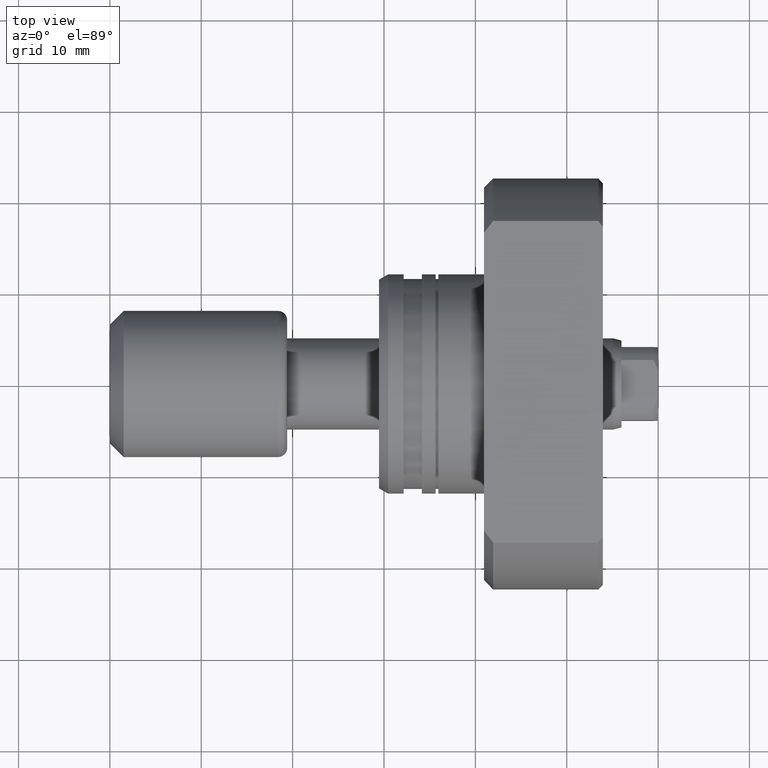
[diagram: clean part render]
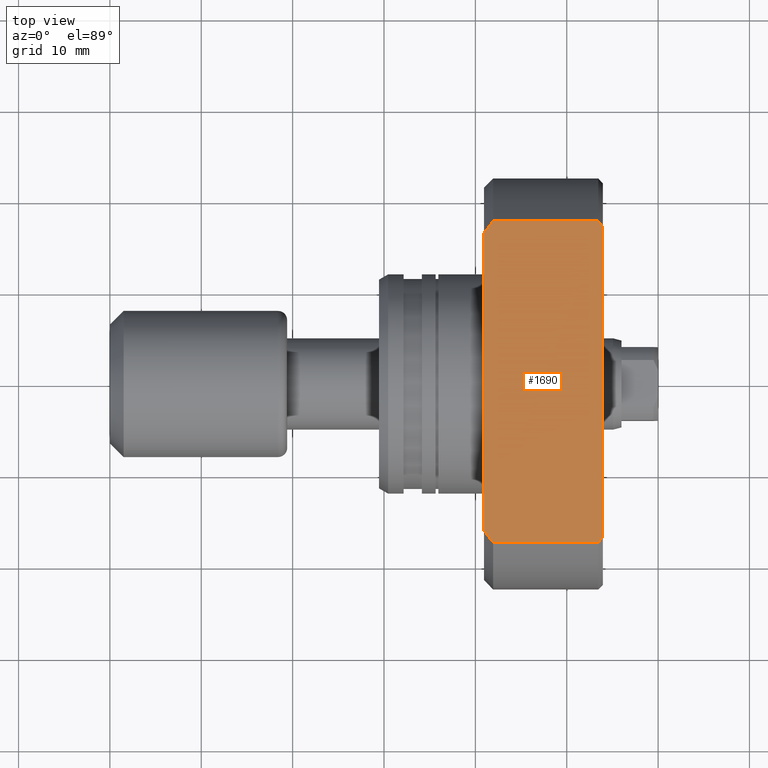
[diagram: same view with one face highlighted and labeled with its STEP entity id]
A machine part, top view. The second image highlights one B-rep face of the part: STEP entity #1690.
In plain terms, the highlighted planar face has unit normal (0, 0, 1).
Its self-contained STEP definition (entity closure, byte-faithful):
#130 = VERTEX_POINT ( 'NONE', #1606 ) ;
#141 = ORIENTED_EDGE ( 'NONE', *, *, #972, .T. ) ;
#162 = VERTEX_POINT ( 'NONE', #245 ) ;
#220 = B_SPLINE_CURVE_WITH_KNOTS ( 'NONE', 3,
 ( #3134, #1663, #1417, #899 ),
 .UNSPECIFIED., .F., .F.,
 ( 4, 4 ),
 ( 0.06706314534022636553, 0.06787700449519981638 ),
 .UNSPECIFIED. ) ;
#245 = CARTESIAN_POINT ( 'NONE',  ( 24.50000000000000000, 16.97056274847713553, 14.00000000000000355 ) ) ;
#257 = EDGE_CURVE ( 'NONE', #1343, #130, #2951, .T. ) ;
#596 = EDGE_CURVE ( 'NONE', #2818, #162, #963, .T. ) ;
#608 = DIRECTION ( 'NONE',  ( 1.000000000000000000, 0.000000000000000000, -0.000000000000000000 ) ) ;
#639 = CARTESIAN_POINT ( 'NONE',  ( -1.422473250300981817E-13, 17.61391495380915018, 14.00000000000000355 ) ) ;
#681 = B_SPLINE_CURVE_WITH_KNOTS ( 'NONE', 3,
 ( #2090, #1584, #1866, #3076 ),
 .UNSPECIFIED., .F., .F.,
 ( 4, 4 ),
 ( 0.06624998678667230745, 0.06788534956766804906 ),
 .UNSPECIFIED. ) ;
#710 = CARTESIAN_POINT ( 'NONE',  ( -1.162264728904460753E-12, -17.61391495380774685, 14.00000000000001066 ) ) ;
#756 = CARTESIAN_POINT ( 'NONE',  ( 24.00000000000007461, -17.61391495380843963, 14.00000000000001066 ) ) ;
#789 = CARTESIAN_POINT ( 'NONE',  ( 11.82989979264795011, 16.75185491336265997, 14.00000000000000355 ) ) ;
#899 = CARTESIAN_POINT ( 'NONE',  ( 24.00000000000007461, 17.61391495380845029, 13.99999999999999645 ) ) ;
#911 = DIRECTION ( 'NONE',  ( 4.998558363877804092E-19, -1.000000000000000000, 0.000000000000000000 ) ) ;
#952 = ORIENTED_EDGE ( 'NONE', *, *, #2992, .T. ) ;
#963 = LINE ( 'NONE', #1910, #3074 ) ;
#972 = EDGE_CURVE ( 'NONE', #3004, #2671, #1010, .T. ) ;
#1010 = B_SPLINE_CURVE_WITH_KNOTS ( 'NONE', 3,
 ( #1524, #3027, #789, #1794 ),
 .UNSPECIFIED., .F., .F.,
 ( 4, 4 ),
 ( 0.02825164645976066535, 0.02989446144990340337 ),
 .UNSPECIFIED. ) ;
#1044 = VECTOR ( 'NONE', #2458, 1000.000000000000000 ) ;
#1082 = ORIENTED_EDGE ( 'NONE', *, *, #1402, .T. ) ;
#1107 = FACE_OUTER_BOUND ( 'NONE', #1737, .T. ) ;
#1131 = CARTESIAN_POINT ( 'NONE',  ( 11.49999999999978506, -11.99999999999999467, 14.00000000000000355 ) ) ;
#1165 = DIRECTION ( 'NONE',  ( -0.000000000000000000, 1.000000000000000000, 0.000000000000000000 ) ) ;
#1203 = VECTOR ( 'NONE', #911, 1000.000000000000000 ) ;
#1325 = ORIENTED_EDGE ( 'NONE', *, *, #2330, .F. ) ;
#1343 = VERTEX_POINT ( 'NONE', #1505 ) ;
#1402 = EDGE_CURVE ( 'NONE', #130, #2818, #2332, .T. ) ;
#1417 = CARTESIAN_POINT ( 'NONE',  ( 24.16739802011472449, 17.40008086510889740, 14.00000000000000355 ) ) ;
#1477 = CARTESIAN_POINT ( 'NONE',  ( 24.33413566286970564, -17.18558304397054926, 14.00000000000000355 ) ) ;
#1505 = CARTESIAN_POINT ( 'NONE',  ( 12.49999999999977263, -17.61391495380810568, 14.00000000000001066 ) ) ;
#1524 = CARTESIAN_POINT ( 'NONE',  ( 12.49999999999977263, 17.61391495380878425, 13.99999999999999645 ) ) ;
#1578 = ORIENTED_EDGE ( 'NONE', *, *, #596, .T. ) ;
#1579 = EDGE_CURVE ( 'NONE', #2671, #2420, #2398, .T. ) ;
#1584 = CARTESIAN_POINT ( 'NONE',  ( 11.83011165526848885, -16.75213407002135213, 14.00000000000000355 ) ) ;
#1606 = CARTESIAN_POINT ( 'NONE',  ( 24.00000000000007461, -17.61391495380843963, 14.00000000000001066 ) ) ;
#1663 = CARTESIAN_POINT ( 'NONE',  ( 24.33408568434172992, 17.18564783425659925, 14.00000000000000355 ) ) ;
#1690 = ADVANCED_FACE ( 'NONE', ( #1107 ), #2849, .T. ) ;
#1712 = CARTESIAN_POINT ( 'NONE',  ( -1.422473250300981817E-13, 17.61391495380914307, 13.99999999999999645 ) ) ;
#1725 = CARTESIAN_POINT ( 'NONE',  ( 24.16744706737967618, -17.40001821217426681, 14.00000000000000355 ) ) ;
#1737 = EDGE_LOOP ( 'NONE', ( #141, #2134, #2277, #2792, #1082, #1578, #952, #1325 ) ) ;
#1759 = CARTESIAN_POINT ( 'NONE',  ( 24.50000000000000000, -16.97056274847713553, 14.00000000000000355 ) ) ;
#1794 = CARTESIAN_POINT ( 'NONE',  ( 11.49999999999978861, 16.31716887208061095, 14.00000000000000355 ) ) ;
#1866 = CARTESIAN_POINT ( 'NONE',  ( 12.16362554919180994, -17.18423051607681984, 14.00000000000000355 ) ) ;
#1910 = CARTESIAN_POINT ( 'NONE',  ( 24.50000000000000000, 17.61391495380915018, 14.00000000000000355 ) ) ;
#1968 = LINE ( 'NONE', #1712, #2705 ) ;
#2065 = CARTESIAN_POINT ( 'NONE',  ( 11.49999999999978684, -16.31716887208061095, 14.00000000000000355 ) ) ;
#2090 = CARTESIAN_POINT ( 'NONE',  ( 11.49999999999978684, -16.31716887208061095, 14.00000000000000355 ) ) ;
#2100 = CARTESIAN_POINT ( 'NONE',  ( 24.50000000000000000, -16.97056274847713553, 14.00000000000000355 ) ) ;
#2134 = ORIENTED_EDGE ( 'NONE', *, *, #1579, .T. ) ;
#2273 = CARTESIAN_POINT ( 'NONE',  ( 11.49999999999978861, 16.31716887208061095, 14.00000000000000355 ) ) ;
#2277 = ORIENTED_EDGE ( 'NONE', *, *, #2580, .T. ) ;
#2330 = EDGE_CURVE ( 'NONE', #3004, #3200, #1968, .T. ) ;
#2332 = B_SPLINE_CURVE_WITH_KNOTS ( 'NONE', 3,
 ( #756, #1725, #1477, #1759 ),
 .UNSPECIFIED., .F., .F.,
 ( 4, 4 ),
 ( 0.02824287035670665011, 0.02906016577245322530 ),
 .UNSPECIFIED. ) ;
#2371 = CARTESIAN_POINT ( 'NONE',  ( 12.49999999999977263, 17.61391495380878425, 13.99999999999999645 ) ) ;
#2398 = LINE ( 'NONE', #1131, #1203 ) ;
#2420 = VERTEX_POINT ( 'NONE', #2065 ) ;
#2458 = DIRECTION ( 'NONE',  ( 1.000000000000000000, -2.886466111666351885E-14, -0.000000000000000000 ) ) ;
#2517 = AXIS2_PLACEMENT_3D ( 'NONE', #639, #3100, #608 ) ;
#2580 = EDGE_CURVE ( 'NONE', #2420, #1343, #681, .T. ) ;
#2671 = VERTEX_POINT ( 'NONE', #2273 ) ;
#2705 = VECTOR ( 'NONE', #2712, 1000.000000000000000 ) ;
#2712 = DIRECTION ( 'NONE',  ( 1.000000000000000000, -2.886466111666351885E-14, -0.000000000000000000 ) ) ;
#2792 = ORIENTED_EDGE ( 'NONE', *, *, #257, .T. ) ;
#2818 = VERTEX_POINT ( 'NONE', #2100 ) ;
#2849 = PLANE ( 'NONE',  #2517 ) ;
#2922 = CARTESIAN_POINT ( 'NONE',  ( 24.00000000000007461, 17.61391495380845029, 13.99999999999999645 ) ) ;
#2951 = LINE ( 'NONE', #710, #1044 ) ;
#2992 = EDGE_CURVE ( 'NONE', #162, #3200, #220, .T. ) ;
#3004 = VERTEX_POINT ( 'NONE', #2371 ) ;
#3027 = CARTESIAN_POINT ( 'NONE',  ( 12.16342151182557352, 17.18396987891851424, 14.00000000000000355 ) ) ;
#3074 = VECTOR ( 'NONE', #1165, 1000.000000000000000 ) ;
#3076 = CARTESIAN_POINT ( 'NONE',  ( 12.49999999999977263, -17.61391495380810568, 14.00000000000001066 ) ) ;
#3100 = DIRECTION ( 'NONE',  ( 0.000000000000000000, 0.000000000000000000, 1.000000000000000000 ) ) ;
#3134 = CARTESIAN_POINT ( 'NONE',  ( 24.50000000000000000, 16.97056274847713553, 14.00000000000000355 ) ) ;
#3200 = VERTEX_POINT ( 'NONE', #2922 ) ;